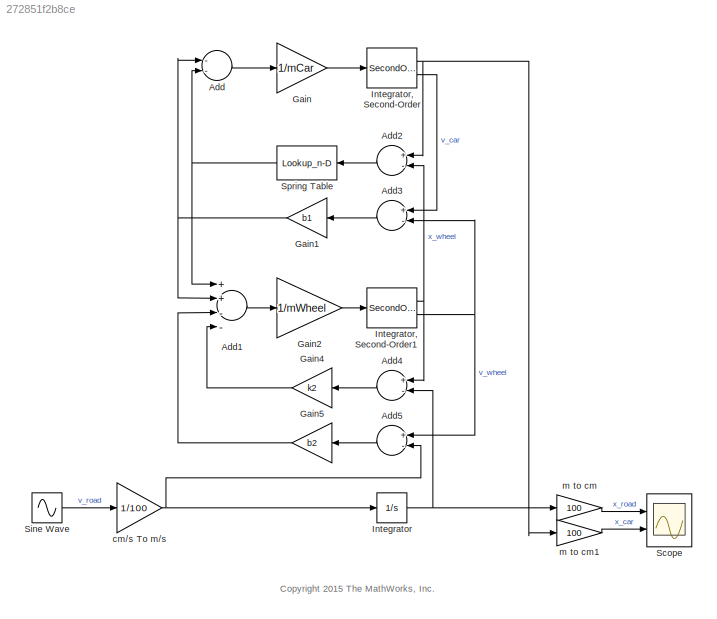
MODEL slx_272851f2b8ce
KIND model
CONFIG AbsTol = auto
CONFIG FixedStep = auto
CONFIG MaxStep = 1e-3
CONFIG MinStep = auto
CONFIG PreLoadFcn = load carParams\nload springData
CONFIG RelTol = 1e-3
CONFIG SampleTimeConstraint = Unconstrained
CONFIG Solver = ode23t
CONFIG SolverMode = Auto
CONFIG SolverName = ode23t
CONFIG StartTime = 0.0
CONFIG StopTime = 10
BLOCK [Sum] Add
  InputSameDT = off
  Inputs = --
  OutDataTypeStr = Inherit: Inherit via internal rule
  Ports = [2, 1]
  SaturateOnIntegerOverflow = off
BLOCK [Sum] Add1
  InputSameDT = off
  Inputs = ++--
  OutDataTypeStr = Inherit: Inherit via internal rule
  Ports = [4, 1]
  SaturateOnIntegerOverflow = off
BLOCK [Sum] Add2
  InputSameDT = off
  Inputs = +-
  OutDataTypeStr = Inherit: Inherit via internal rule
  Ports = [2, 1]
  SaturateOnIntegerOverflow = off
BLOCK [Sum] Add3
  InputSameDT = off
  Inputs = +-
  OutDataTypeStr = Inherit: Inherit via internal rule
  Ports = [2, 1]
  SaturateOnIntegerOverflow = off
BLOCK [Sum] Add4
  InputSameDT = off
  Inputs = +-
  OutDataTypeStr = Inherit: Inherit via internal rule
  Ports = [2, 1]
  SaturateOnIntegerOverflow = off
BLOCK [Sum] Add5
  InputSameDT = off
  Inputs = +-
  OutDataTypeStr = Inherit: Inherit via internal rule
  Ports = [2, 1]
  SaturateOnIntegerOverflow = off
BLOCK [Gain] Gain
  Gain = 1/mCar
  OutDataTypeStr = Inherit: Inherit via internal rule
  ParamDataTypeStr = Inherit: Inherit via internal rule
  SaturateOnIntegerOverflow = off
BLOCK [Gain] Gain1
  Gain = b1
  OutDataTypeStr = Inherit: Inherit via internal rule
  ParamDataTypeStr = Inherit: Inherit via internal rule
  SaturateOnIntegerOverflow = off
BLOCK [Gain] Gain2
  Gain = 1/mWheel
  OutDataTypeStr = Inherit: Inherit via internal rule
  ParamDataTypeStr = Inherit: Inherit via internal rule
  SaturateOnIntegerOverflow = off
BLOCK [Gain] Gain4
  Gain = k2
  OutDataTypeStr = Inherit: Inherit via internal rule
  ParamDataTypeStr = Inherit: Inherit via internal rule
  SaturateOnIntegerOverflow = off
BLOCK [Gain] Gain5
  Gain = b2
  OutDataTypeStr = Inherit: Inherit via internal rule
  ParamDataTypeStr = Inherit: Inherit via internal rule
  SaturateOnIntegerOverflow = off
BLOCK [Integrator] Integrator
  Ports = [1, 1]
BLOCK [SecondOrderIntegrator] Integrator, Second-Order
  Ports = [1, 2]
BLOCK [SecondOrderIntegrator] Integrator, Second-Order1
  Ports = [1, 2]
BLOCK [Scope] Scope
  Floating = off
  LimitDataPoints = off
  NumInputPorts = 2
  Ports = [2]
  TimeRange = 10
  YMax = 4~0.2
  YMin = -4~-0.2
  ZoomMode = xonly
BLOCK [Sin] Sine Wave
  Amplitude = 250
  Frequency = 100
  Phase = pi/2
  Ports = [0, 1]
  SampleTime = 0
BLOCK [Lookup_n-D] Spring Table
  BreakpointsForDimension1 = x/100
  InternalRulePriority = Speed
  NumberOfTableDimensions = 1
  Ports = [1, 1]
  RndMeth = Simplest
  Table = Fs
BLOCK [Gain] cm//s To m//s
  Gain = 1/100
  OutDataTypeStr = Inherit: Inherit via internal rule
  ParamDataTypeStr = Inherit: Inherit via internal rule
  SaturateOnIntegerOverflow = off
BLOCK [Gain] m to cm
  Gain = 100
  OutDataTypeStr = Inherit: Inherit via internal rule
  ParamDataTypeStr = Inherit: Inherit via internal rule
  SaturateOnIntegerOverflow = off
BLOCK [Gain] m to cm1
  Gain = 100
  OutDataTypeStr = Inherit: Inherit via internal rule
  ParamDataTypeStr = Inherit: Inherit via internal rule
  SaturateOnIntegerOverflow = off
ANNOTATION (root): <copyright redacted>
LINE Add1:1 -> Gain2:1
LINE Add2:1 -> Spring Table:1
LINE Add3:1 -> Gain1:1
LINE Add4:1 -> Gain4:1
LINE Add5:1 -> Gain5:1
LINE Add:1 -> Gain:1
NET Gain1:1 -> Add1:2, Add:1
LINE Gain2:1 -> Integrator, Second-Order1:1
LINE Gain4:1 -> Add1:4
LINE Gain5:1 -> Add1:3
LINE Gain:1 -> Integrator, Second-Order:1
NET Integrator, Second-Order1:1 -> Add2:2, Add4:1
NET Integrator, Second-Order1:2 -> Add3:2, Add5:1
NET Integrator, Second-Order:1 -> Add2:1, m to cm1:1
LINE Integrator, Second-Order:2 -> Add3:1
NET Integrator:1 -> Add4:2, m to cm:1
LINE Sine Wave:1 -> cm//s To m//s:1
NET Spring Table:1 -> Add1:1, Add:2
NET cm//s To m//s:1 -> Add5:2, Integrator:1
LINE m to cm1:1 -> Scope:2
LINE m to cm:1 -> Scope:1
note: NET lines group one-source signal fan-out (src -> all destinations, sorted); 1:1 wires keep LINE
